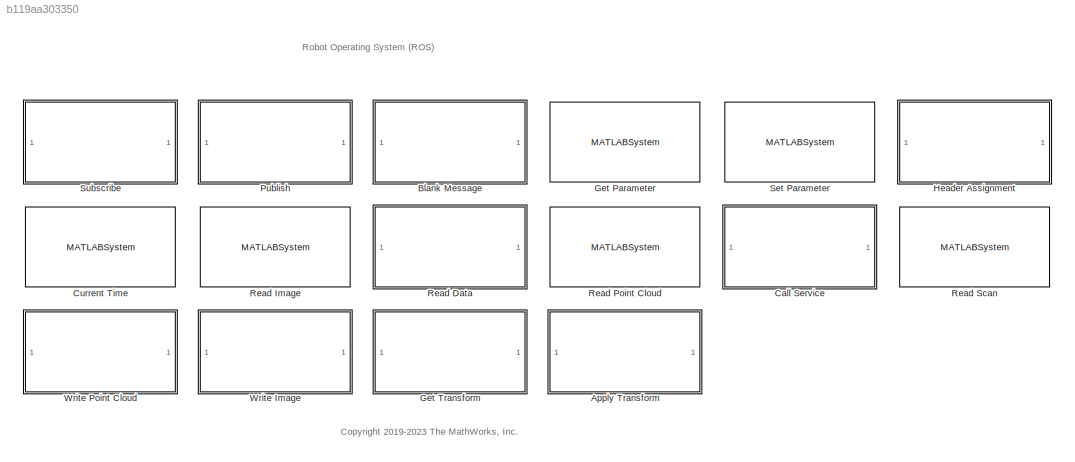
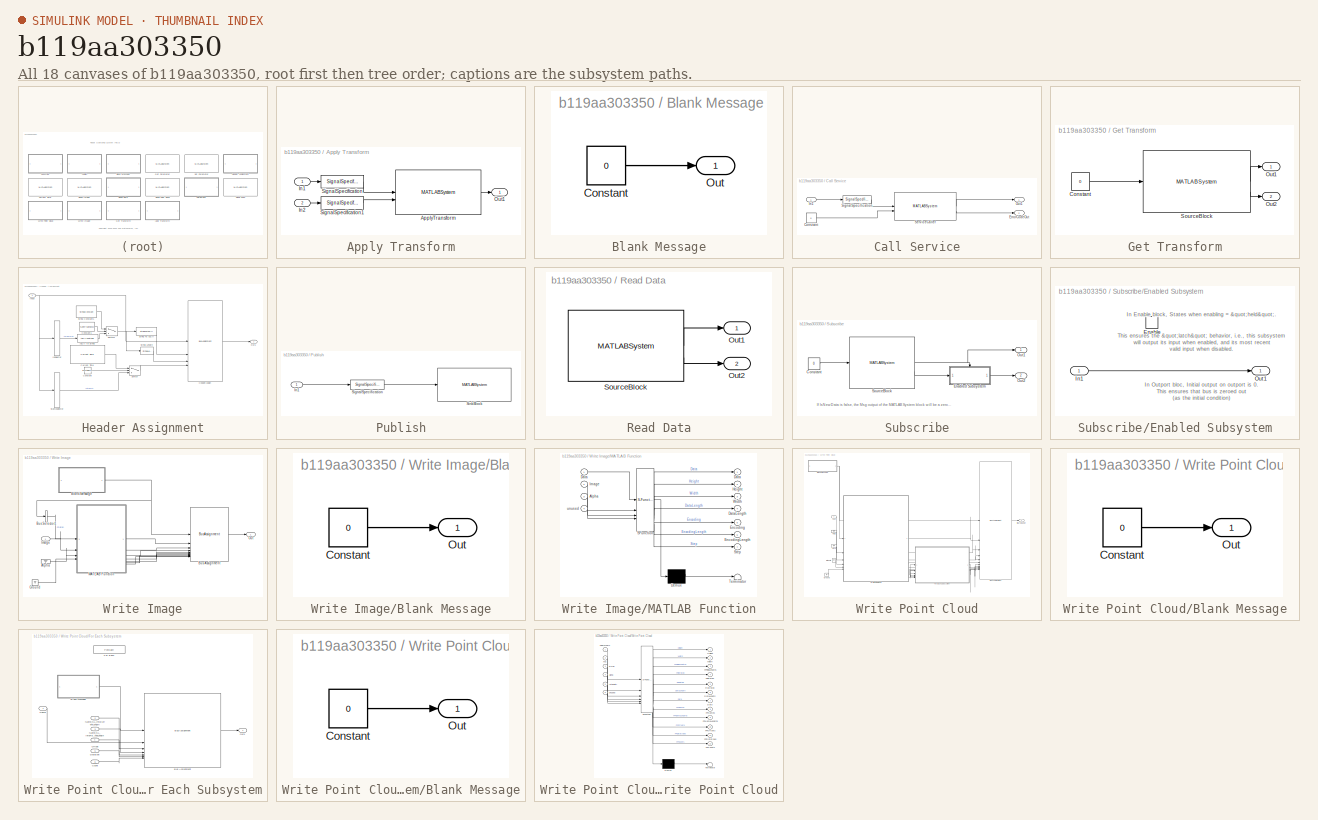
[diagram: thumbnail index - all 18 canvases of the model, root first then tree order]
MODEL slx_b119aa303350
KIND library
CONFIG AbsTol = auto
CONFIG EnableMultiTasking = on
CONFIG FixedStep = auto
CONFIG MaxStep = auto
CONFIG MinStep = auto
CONFIG RelTol = 1e-3
CONFIG SampleTimeConstraint = Unconstrained
CONFIG SolverName = ode45
CONFIG StartTime = 0.0
CONFIG StopTime = 10.0
BLOCK [SubSystem] Apply Transform
  InitFcn = ros.slros.internal.block.errorIfBlocksConflict(bdroot(gcb));
  MaskHideContents = on
  ModelCloseFcn = ros.slros.internal.block.ApplyTransformBlockMask.dispatch('modelCloseFcn', gcb);
  SystemSampleTime = SampleTime
BLOCK [MATLABSystem] Apply Transform/ApplyTransform
  BlockId = APTF_robotlib_180
  EntityMsgType = geometry_msgs/QuaternionStamped
  MaskType = ros.slroscpp.internal.block.ApplyTransform
  ModelName = robotlib
  SLOutputBusName = SL_Bus_robotlib_geometry_msgs_QuaternionStamped
  System = ros.slroscpp.internal.block.ApplyTransform
BLOCK [Inport] Apply Transform/In1
BLOCK [Inport] Apply Transform/In2
  Port = 2
BLOCK [Outport] Apply Transform/Out1
BLOCK [SignalSpecification] Apply Transform/SignalSpecification
  BusOutputAsStruct = on
  LockScale = on
  OutDataTypeStr = Bus: SL_Bus_robotlib_geometry_msgs_TransformStamped
BLOCK [SignalSpecification] Apply Transform/SignalSpecification1
  BusOutputAsStruct = on
  LockScale = on
  OutDataTypeStr = Bus: SL_Bus_robotlib_geometry_msgs_QuaternionStamped
BLOCK [SubSystem] Blank Message
  InitFcn = ros.slros.internal.block.errorIfBlocksConflict(bdroot(gcb));
  LoadFcn = ros.slros.internal.block.MessageBlockMask.dispatch('loadFcn', gcb);
  MaskHideContents = on
  ModelCloseFcn = ros.slros.internal.block.MessageBlockMask.dispatch('modelCloseFcn', gcb);
  PreSaveFcn = ros.slros.internal.block.MessageBlockMask.dispatch('preSaveFcn', gcb);
  TreatAsAtomicUnit = on
BLOCK [Constant] Blank Message/Constant
  InitFcn = ros.slros.internal.block.MessageBlockMask.dispatch('constantBlkInitFcn', gcb);
  LockScale = on
  OutDataTypeStr = Bus: SL_Bus_robotlib_geometry_msgs_Point
  SampleTime = SampleTime
  Value = 0
BLOCK [Outport] Blank Message/Out
  LockScale = on
  VectorParamsAs1DForOutWhenUnconnected = off
BLOCK [SubSystem] Call Service
  InitFcn = ros.slros.internal.block.errorIfBlocksConflict(bdroot(gcb));
  MaskHideContents = on
  ModelCloseFcn = ros.slros.internal.block.ServiceCallBlockMask.dispatch('modelCloseFcn', gcb);
  TreatAsAtomicUnit = on
BLOCK [Constant] Call Service/Constant
  InitFcn = ros.slros.internal.block.ServiceCallBlockMask.dispatch('constantBlkInitFcn', gcb);
  LockScale = on
  OutDataTypeStr = Bus: SL_Bus_robotlib_std_srvs_EmptyResponse
  SampleTime = -1
  Value = 0
  VectorParams1D = off
BLOCK [Outport] Call Service/ErrorCodeOut
  Port = 2
  VectorParamsAs1DForOutWhenUnconnected = off
BLOCK [Inport] Call Service/In1
  LockScale = on
BLOCK [Outport] Call Service/Out1
  VectorParamsAs1DForOutWhenUnconnected = off
BLOCK [MATLABSystem] Call Service/ServiceCaller
  BlockId = serv1
  ConnectionTimeout = 5
  InitFcn = ros.slros.internal.block.ServiceCallBlockMask.dispatch('sysobjInitFcn', gcb);
  IsPersistentConnection = off
  MaskType = ros.slroscpp.internal.block.ServiceCaller
  ModelName = untitled
  ServiceName = /my_service
  ServiceType = std_srvs/Empty
  System = ros.slroscpp.internal.block.ServiceCaller
BLOCK [SignalSpecification] Call Service/SignalSpecification
  BusOutputAsStruct = on
  LockScale = on
  OutDataTypeStr = Bus: SL_Bus_robotlib_std_srvs_EmptyRequest
BLOCK [MATLABSystem] Current Time
  InitFcn = ros.slros.internal.block.CurrentTimeBlockMask.dispatch('initFcn', gcb);
  MaskType = ros.slros.internal.block.CurrentTime
  ModelCloseFcn = ros.slros.internal.block.CurrentTimeBlockMask.dispatch('modelCloseFcn', gcb);
  ModelName = robotlib
  OutputFormat = bus
  SampleTime = SampleTime
  System = ros.slros.internal.block.CurrentTime
BLOCK [MATLABSystem] Get Parameter
  BlockId = ParamGet_robotlib_148
  MaskType = ROS Get Parameter
  ModelName = robotlib
  ParameterInitialValue = ParameterInitialValue
  ParameterMaxArrayLength = ParameterMaxArrayLength
  ParameterName = /my_param
  ParameterSource = Select from ROS network
  ParameterType = double
  SampleTime = SampleTime
  ShowErrorCodeOutput = on
  System = ros.slros.internal.block.GetParameter
BLOCK [SubSystem] Get Transform
  InitFcn = ros.slros.internal.block.errorIfBlocksConflict(bdroot(gcb));
  MaskHideContents = on
  ModelCloseFcn = ros.slros.internal.block.GetTransformBlockMask.dispatch('modelCloseFcn', gcb);
  TreatAsAtomicUnit = on
BLOCK [Constant] Get Transform/Constant
  LockScale = on
  OutDataTypeStr = Bus: SL_Bus_robotlib_geometry_msgs_TransformStamped
  SampleTime = SampleTime
  Value = 0
  VectorParams1D = off
BLOCK [Outport] Get Transform/Out1
BLOCK [Outport] Get Transform/Out2
  Port = 2
BLOCK [MATLABSystem] Get Transform/SourceBlock
  BlockId = TF_robotlib_175
  MaskType = ros.slroscpp.internal.block.GetTransform
  ModelName = robotlib
  OutputFormat = bus
  SLBusName = SL_Bus_robotlib_geometry_msgs_TransformStamped
  SampleTime = -1
  System = ros.slroscpp.internal.block.GetTransform
BLOCK [SubSystem] Header Assignment
  MaskHideContents = on
  TreatAsAtomicUnit = on
BLOCK [ASCIIToString] Header Assignment/ASCII to String
BLOCK [Constant] Header Assignment/Constant
  Value = InsertTimeStamp
BLOCK [Constant] Header Assignment/Constant1
  Value = SetFrameID
BLOCK [Reference] Header Assignment/Current Time  REF=$bdroot/Current Time
  SourceBlock = $bdroot/Current Time
  SourceType = ros.slros.internal.block.CurrentTime
BLOCK [BusAssignment] Header Assignment/HeaderAssign
  AssignedSignals = Header.FrameId,Header.FrameId_SL_Info.CurrentLength,Header.Stamp
BLOCK [BusSelector] Header Assignment/IdSelector
  OutputSignals = Header.FrameId
BLOCK [Inport] Header Assignment/Input
BLOCK [Outport] Header Assignment/Out1
BLOCK [BusSelector] Header Assignment/StampSelector
  OutputSignals = Header.Stamp
BLOCK [StringConstant] Header Assignment/String Constant1
  String = FrameID
BLOCK [StringLength] Header Assignment/String Length
BLOCK [StringToASCII] Header Assignment/String To ASCII
  OutputVectorSize = 128
BLOCK [Switch] Header Assignment/Switch
  Criteria = u2 ~= 0
  InputSameDT = off
  SaturateOnIntegerOverflow = off
  Threshold = 1.5
BLOCK [Switch] Header Assignment/Switch1
  Criteria = u2 ~= 0
  InputSameDT = off
  SaturateOnIntegerOverflow = off
  Threshold = 1.5
BLOCK [SubSystem] Publish
  InitFcn = ros.slros.internal.block.errorIfBlocksConflict(bdroot(gcb));
  MaskHideContents = on
  ModelCloseFcn = ros.slros.internal.block.PublishBlockMask.dispatch('modelCloseFcn', gcb);
  TreatAsAtomicUnit = on
BLOCK [Inport] Publish/In1
  LockScale = on
BLOCK [SignalSpecification] Publish/SignalSpecification
  BusOutputAsStruct = on
  LockScale = on
  OutDataTypeStr = Bus: SL_Bus_robotlib_geometry_msgs_Point
BLOCK [MATLABSystem] Publish/SinkBlock
  BlockId = Pub_robotlib_94
  MaskType = ros.slroscpp.internal.block.Publisher
  MessageQueueLen = messageQueueLength
  ModelName = robotlib
  ROSMessageType = geometry_msgs/Point
  ROSTopic = /my_topic
  SLBusName = SL_Bus_robotlib_geometry_msgs_Point
  System = ros.slroscpp.internal.block.Publisher
BLOCK [SubSystem] Read Data
  InitFcn = ros.slros.internal.block.errorIfBlocksConflict(bdroot(gcb));
  MaskHideContents = on
  ModelCloseFcn = ros.slros.internal.block.ReadDataBlockMask.modelCloseFcn(gcb);
  Permissions = ReadOnly
  TreatAsAtomicUnit = on
BLOCK [Outport] Read Data/Out1
  VectorParamsAs1DForOutWhenUnconnected = off
BLOCK [Outport] Read Data/Out2
  Port = 2
  VectorParamsAs1DForOutWhenUnconnected = off
BLOCK [MATLABSystem] Read Data/SourceBlock
  LogfileType = rosbag
  MaskType = ros.slros.internal.block.ReadData
  ModelName = robotlib
  SampleTime = sampleTime
  System = ros.slros.internal.block.ReadData
  Topic = /my_topic
BLOCK [MATLABSystem] Read Image
  ImageEncoding = rgb8
  InitFcn = ros.slros.internal.block.errorIfBlocksConflict(bdroot(gcb));
  MaskBlockDVGIcon = MATLABSystemBlock.robotlib_readimage
  MaskType = ros.slros.internal.block.ReadImage
  MaximumImageSize = [ 2000, 2000 ]
  ShowAlphaOutput = off
  ShowErrorCodeOutput = on
  System = ros.slros.internal.block.ReadImage
  VariableSizeOutputs = off
BLOCK [MATLABSystem] Read Point Cloud
  InitFcn = ros.slros.internal.block.errorIfBlocksConflict(bdroot(gcb));
  MaskBlockDVGIcon = MATLABSystemBlock.robotlib_readpointcloud
  MaskType = ros.slros.internal.block.ReadPointCloud
  MaximumPointCloudSize = [ 480, 640 ]
  PreserveStructure = off
  ShowErrorCodeOutput = on
  ShowIntensityOutput = off
  ShowRGBOutput = off
  System = ros.slros.internal.block.ReadPointCloud
  VariableSizeOutputs = off
BLOCK [MATLABSystem] Read Scan
  InitFcn = ros.slros.internal.block.errorIfBlocksConflict(bdroot(gcb));
  MaskBlockDVGIcon = MATLABSystemBlock.robotlib_readscan
  MaskType = ros.slros.internal.block.ReadScan
  MaximumArrayLength = 100
  ShowAnglesOutput = on
  ShowErrorCodeOutput = on
  ShowIntensityOutput = off
  System = ros.slros.internal.block.ReadScan
  VariableSizeOutputs = off
BLOCK [MATLABSystem] Set Parameter
  BlockId = ParamSet_robotlib_107
  MaskType = ROS Set Parameter
  ModelName = robotlib
  ParameterName = /my_param
  ParameterSource = Select from ROS network
  ParameterType = double
  System = ros.slros.internal.block.SetParameter
BLOCK [SubSystem] Subscribe
  InitFcn = ros.slros.internal.block.errorIfBlocksConflict(bdroot(gcb));
  MaskHideContents = on
  ModelCloseFcn = ros.slros.internal.block.SubscribeBlockMask.dispatch('modelCloseFcn', gcb);
  TreatAsAtomicUnit = on
BLOCK [Constant] Subscribe/Constant
  LockScale = on
  OutDataTypeStr = Bus: SL_Bus_robotlib_geometry_msgs_Point
  SampleTime = SampleTime
  Value = 0
  VectorParams1D = off
BLOCK [SubSystem] Subscribe/Enabled Subsystem
  TreatAsAtomicUnit = on
BLOCK [EnablePort] Subscribe/Enabled Subsystem/Enable
BLOCK [Inport] Subscribe/Enabled Subsystem/In1
BLOCK [Outport] Subscribe/Enabled Subsystem/Out1
  InitialOutput = 0
  VectorParamsAs1DForOutWhenUnconnected = off
BLOCK [Outport] Subscribe/Out1
  VectorParamsAs1DForOutWhenUnconnected = off
BLOCK [Outport] Subscribe/Out2
  LockScale = on
  Port = 2
  VectorParamsAs1DForOutWhenUnconnected = off
BLOCK [MATLABSystem] Subscribe/SourceBlock
  BlockId = Sub_robotlib_93
  MaskType = ros.slroscpp.internal.block.Subscriber
  MessageQueueLen = messageQueueLength
  ModelName = robotlib
  ROSMessageType = geometry_msgs/Point
  ROSTopic = /my_topic
  SLBusName = SL_Bus_robotlib_geometry_msgs_Point
  System = ros.slroscpp.internal.block.Subscriber
BLOCK [SubSystem] Write Image
  InitFcn = ros.slros.internal.block.errorIfBlocksConflict(bdroot(gcb));\nros.slros.internal.block.WriteImageBlockMask.dispatch('maskInitialize', gcb);
  MaskHideContents = on
BLOCK [Ground] Write Image/Alpha
BLOCK [SubSystem] Write Image/Blank Message
  InitFcn = ros.slros.internal.block.errorIfBlocksConflict(bdroot(gcb));
  LoadFcn = ros.slros.internal.block.MessageBlockMask.dispatch('loadFcn', gcb);
  MaskHideContents = on
  ModelCloseFcn = ros.slros.internal.block.MessageBlockMask.dispatch('modelCloseFcn', gcb);
  PreSaveFcn = ros.slros.internal.block.MessageBlockMask.dispatch('preSaveFcn', gcb);
  TreatAsAtomicUnit = on
BLOCK [Constant] Write Image/Blank Message/Constant
  InitFcn = ros.slros.internal.block.MessageBlockMask.dispatch('constantBlkInitFcn', gcb);
  LockScale = on
  OutDataTypeStr = Bus: SL_Bus_robotlib_sensor_msgs_Image
  SampleTime = SampleTime
  Value = 0
BLOCK [Outport] Write Image/Blank Message/Out
  LockScale = on
  VectorParamsAs1DForOutWhenUnconnected = off
BLOCK [BusAssignment] Write Image/Bus Assignment
  AssignedSignals = Data,Height,Width,Data_SL_Info.CurrentLength,Data_SL_Info.ReceivedLength,Encoding,Encoding_SL_Info.CurrentLength,Encoding_SL_Info.ReceivedLength,Step
BLOCK [BusSelector] Write Image/Bus Selector1
  OutputSignals = Data
BLOCK [Ground] Write Image/Ground
BLOCK [Inport] Write Image/Image
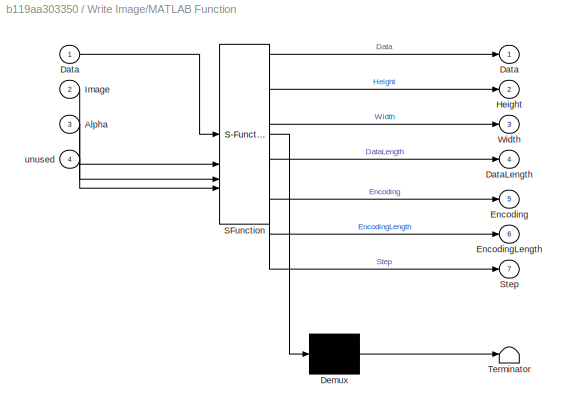
BLOCK [SubSystem] Write Image/MATLAB Function
  ErrorFcn = Stateflow.Translate.translate
  PermitHierarchicalResolution = ExplicitOnly
  SFBlockType = MATLAB Function
  TreatAsAtomicUnit = on
BLOCK [Demux] Write Image/MATLAB Function/ Demux 
  Outputs = 1
BLOCK [S-Function] Write Image/MATLAB Function/ SFunction 
  EnableBusSupport = off
  FunctionName = sf_sfun
  Parameters = EncodingStruct,HasAlpha,ImageEncoding
  PortCounts = [4 8]
  SFcnIsStateOwnerBlock = off
  SFunctionDeploymentMode = off
  Tag = Stateflow S-Function 3
BLOCK [Terminator] Write Image/MATLAB Function/ Terminator 
BLOCK [Inport] Write Image/MATLAB Function/Alpha
  Port = 3
BLOCK [Outport] Write Image/MATLAB Function/Data
BLOCK [Inport] Write Image/MATLAB Function/Data 
BLOCK [Outport] Write Image/MATLAB Function/DataLength
  Port = 4
BLOCK [Outport] Write Image/MATLAB Function/Encoding
  Port = 5
BLOCK [Outport] Write Image/MATLAB Function/EncodingLength
  Port = 6
BLOCK [Outport] Write Image/MATLAB Function/Height
  Port = 2
BLOCK [Inport] Write Image/MATLAB Function/Image
  Port = 2
BLOCK [Outport] Write Image/MATLAB Function/Step
  Port = 7
BLOCK [Outport] Write Image/MATLAB Function/Width
  Port = 3
BLOCK [Inport] Write Image/MATLAB Function/unused
  Port = 4
BLOCK [Outport] Write Image/Out
BLOCK [SubSystem] Write Point Cloud
  InitFcn = ros.slros.internal.block.errorIfBlocksConflict(bdroot(gcb));\nros.slros.internal.block.WritePointCloudBlockMask.dispatch('maskInitialize', gcb);
  MaskHideContents = on
BLOCK [Ground] Write Point Cloud/Alpha
BLOCK [SubSystem] Write Point Cloud/Blank Message
  InitFcn = ros.slros.internal.block.errorIfBlocksConflict(bdroot(gcb));
  LoadFcn = ros.slros.internal.block.MessageBlockMask.dispatch('loadFcn', gcb);
  MaskHideContents = on
  ModelCloseFcn = ros.slros.internal.block.MessageBlockMask.dispatch('modelCloseFcn', gcb);
  PreSaveFcn = ros.slros.internal.block.MessageBlockMask.dispatch('preSaveFcn', gcb);
  TreatAsAtomicUnit = on
BLOCK [Constant] Write Point Cloud/Blank Message/Constant
  InitFcn = ros.slros.internal.block.MessageBlockMask.dispatch('constantBlkInitFcn', gcb);
  LockScale = on
  OutDataTypeStr = Bus: SL_Bus_write_point_cloud_example_PointCloud2_hs0618
  SampleTime = SampleTime
  Value = 0
BLOCK [Outport] Write Point Cloud/Blank Message/Out
  LockScale = on
  VectorParamsAs1DForOutWhenUnconnected = off
BLOCK [BusAssignment] Write Point Cloud/Bus Assignment
  AssignedSignals = Height,Width,Fields_SL_Info.CurrentLength,Fields_SL_Info.ReceivedLength,PointStep,RowStep,Data_SL_Info.CurrentLength,Data_SL_Info.ReceivedLength,Data,Fields
BLOCK [SubSystem] Write Point Cloud/For Each Subsystem
  TreatAsAtomicUnit = on
BLOCK [SubSystem] Write Point Cloud/For Each Subsystem/Blank Message
  InitFcn = ros.slros.internal.block.errorIfBlocksConflict(bdroot(gcb));
  LoadFcn = ros.slros.internal.block.MessageBlockMask.dispatch('loadFcn', gcb);
  MaskHideContents = on
  ModelCloseFcn = ros.slros.internal.block.MessageBlockMask.dispatch('modelCloseFcn', gcb);
  PreSaveFcn = ros.slros.internal.block.MessageBlockMask.dispatch('preSaveFcn', gcb);
  TreatAsAtomicUnit = on
BLOCK [Constant] Write Point Cloud/For Each Subsystem/Blank Message/Constant
  InitFcn = ros.slros.internal.block.MessageBlockMask.dispatch('constantBlkInitFcn', gcb);
  LockScale = on
  OutDataTypeStr = Bus: SL_Bus_write_point_cloud_example_PointField_2wq1bf
  SampleTime = SampleTime
  Value = 0
BLOCK [Outport] Write Point Cloud/For Each Subsystem/Blank Message/Out
  LockScale = on
  VectorParamsAs1DForOutWhenUnconnected = off
BLOCK [BusAssignment] Write Point Cloud/For Each Subsystem/Bus Assignment
  AssignedSignals = Name,Name_SL_Info.CurrentLength,Name_SL_Info.ReceivedLength,Offset,Datatype,Count
BLOCK [Inport] Write Point Cloud/For Each Subsystem/Count
  Partition = on
  PartitionDimension = 1
  PartitionOffset = 0
  PartitionWidth = 1
  Port = 6
BLOCK [Inport] Write Point Cloud/For Each Subsystem/Datatype
  Partition = on
  PartitionDimension = 1
  PartitionOffset = 0
  PartitionWidth = 1
  Port = 5
BLOCK [ForEach] Write Point Cloud/For Each Subsystem/For Each
  DisableCoverage = on
BLOCK [Inport] Write Point Cloud/For Each Subsystem/Name
  Partition = on
  PartitionDimension = 1
  PartitionOffset = 0
  PartitionWidth = ros.slros.internal.bus.Util.getCurrentFieldLength('sensor_msgs/PointField','Name','ros')
BLOCK [Inport] Write Point Cloud/For Each Subsystem/Name_SL_InfoCurrentLength
  Partition = on
  PartitionDimension = 1
  PartitionOffset = 0
  PartitionWidth = 1
  Port = 2
BLOCK [Inport] Write Point Cloud/For Each Subsystem/Name_SL_InfoReceivedLength
  Partition = on
  PartitionDimension = 1
  PartitionOffset = 0
  PartitionWidth = 1
  Port = 3
BLOCK [Inport] Write Point Cloud/For Each Subsystem/Offset
  Partition = on
  PartitionDimension = 1
  PartitionOffset = 0
  PartitionWidth = 1
  Port = 4
BLOCK [Outport] Write Point Cloud/For Each Subsystem/Out1
  ConcatenationDimension = 1
BLOCK [Ground] Write Point Cloud/Ground
BLOCK [Ground] Write Point Cloud/Intensity
BLOCK [Ground] Write Point Cloud/RGB
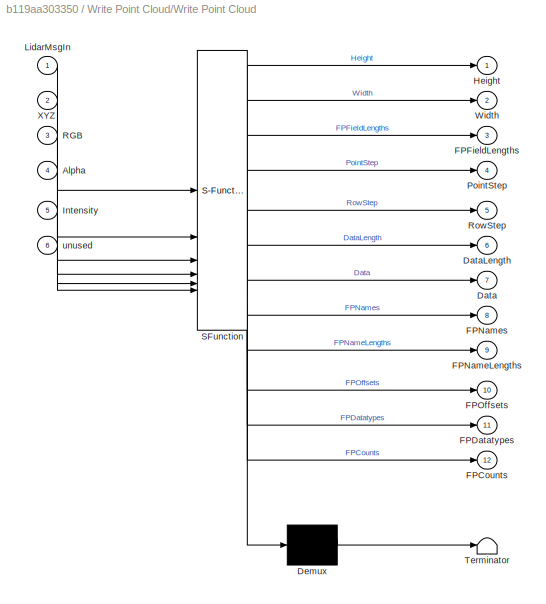
BLOCK [SubSystem] Write Point Cloud/Write Point Cloud
  ErrorFcn = Stateflow.Translate.translate
  PermitHierarchicalResolution = ExplicitOnly
  SFBlockType = MATLAB Function
  TreatAsAtomicUnit = on
BLOCK [Demux] Write Point Cloud/Write Point Cloud/ Demux 
  Outputs = 1
BLOCK [S-Function] Write Point Cloud/Write Point Cloud/ SFunction 
  EnableBusSupport = off
  FunctionName = sf_sfun
  Parameters = FieldNamesStruct,HasAlpha,HasIntensity,HasRGB
  PortCounts = [6 13]
  SFcnIsStateOwnerBlock = off
  SFunctionDeploymentMode = off
  Tag = Stateflow S-Function 2
BLOCK [Terminator] Write Point Cloud/Write Point Cloud/ Terminator 
BLOCK [Inport] Write Point Cloud/Write Point Cloud/Alpha
  Port = 4
BLOCK [Outport] Write Point Cloud/Write Point Cloud/Data
  Port = 7
BLOCK [Outport] Write Point Cloud/Write Point Cloud/DataLength
  Port = 6
BLOCK [Outport] Write Point Cloud/Write Point Cloud/FPCounts
  Port = 12
BLOCK [Outport] Write Point Cloud/Write Point Cloud/FPDatatypes
  Port = 11
BLOCK [Outport] Write Point Cloud/Write Point Cloud/FPFieldLengths
  Port = 3
BLOCK [Outport] Write Point Cloud/Write Point Cloud/FPNameLengths
  Port = 9
BLOCK [Outport] Write Point Cloud/Write Point Cloud/FPNames
  Port = 8
BLOCK [Outport] Write Point Cloud/Write Point Cloud/FPOffsets
  Port = 10
BLOCK [Outport] Write Point Cloud/Write Point Cloud/Height
BLOCK [Inport] Write Point Cloud/Write Point Cloud/Intensity
  Port = 5
BLOCK [Inport] Write Point Cloud/Write Point Cloud/LidarMsgIn
BLOCK [Outport] Write Point Cloud/Write Point Cloud/PointStep
  Port = 4
BLOCK [Inport] Write Point Cloud/Write Point Cloud/RGB
  Port = 3
BLOCK [Outport] Write Point Cloud/Write Point Cloud/RowStep
  Port = 5
BLOCK [Outport] Write Point Cloud/Write Point Cloud/Width
  Port = 2
BLOCK [Inport] Write Point Cloud/Write Point Cloud/XYZ
  Port = 2
BLOCK [Inport] Write Point Cloud/Write Point Cloud/unused
  Port = 6
BLOCK [Inport] Write Point Cloud/XYZ
BLOCK [Outport] Write Point Cloud/lidarMsgOut
ANNOTATION (root): <copyright redacted>
ANNOTATION (root): Robot Operating System (ROS)
ANNOTATION Subscribe: If IsNewData is false, the Msg output of the MATLAB System block will be a zeroed-out bus. So use an Enabled subsystem to hold the most-recent valid output.
ANNOTATION Subscribe/Enabled Subsystem: In Enable block, States when enabling = "held". This ensures the "latch" behavior, i.e., this subsystem will output its input when enabled, and its most recent valid input when disabled.
ANNOTATION Subscribe/Enabled Subsystem: In Outport bloc, Initial output on outport is 0. This ensures that bus is zeroed out (as the initial condition)
CHART Write Point Cloud/Write Point Cloud states=1 transitions=1
  STATE_LABEL 'eML_blk_kernel()'
  STATE_LABEL 'SCRIPT:\nfunction [Height, Width, FPFieldLengths, PointStep, ...\n    RowStep, DataLength, Data, FPNames,...\n    FPNameLengths, FPOffsets, FPDatatypes, FPCounts] ...\n    = WritePointCloudFcnBlock(LidarMsgIn, XYZ, RGB, Alpha, Intensity, ~,...\n    FieldNamesStruct, HasRGB, HasAlpha, HasIntensity)\n\nunstructured = ismatrix(XYZ); \n\nMaxDataLength = length(LidarMsgIn.Data);\nNumFields = length(LidarMsgIn.Fi...<+414ch>'
CHART Write Image/MATLAB Function states=1 transitions=1
  STATE_LABEL 'eML_blk_kernel()'
  STATE_LABEL 'SCRIPT:\nfunction [Data, Height, Width, DataLength, Encoding, EncodingLength, Step]...\n    = WriteImageFcnBlock(Data, Image, Alpha, ~, EncodingStruct, ImageEncoding, HasAlpha)\nSelectedEncodingInd = ImageEncoding;\n% Image encoding is set to evaluate in the mask,\n% so the value is an index.\nSelectedEncoding = ros.msg.sensor_msgs.internal.ImageEncoding.AllEncodings{SelectedEncodingInd};\ntype = Encodin...<+981ch>'
CHART  states=0 transitions=0
CHART  states=0 transitions=0
